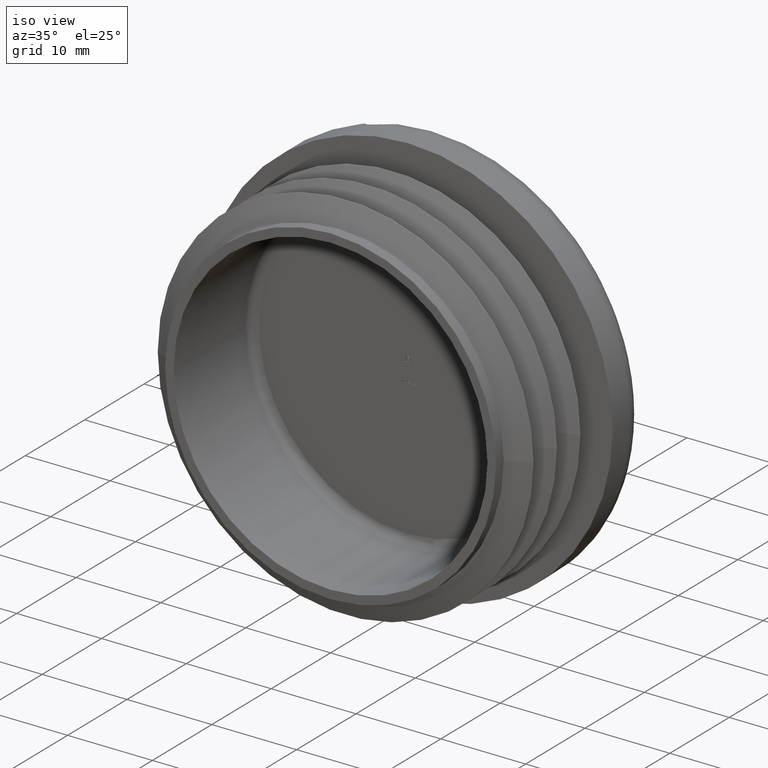
[diagram: clean part render]
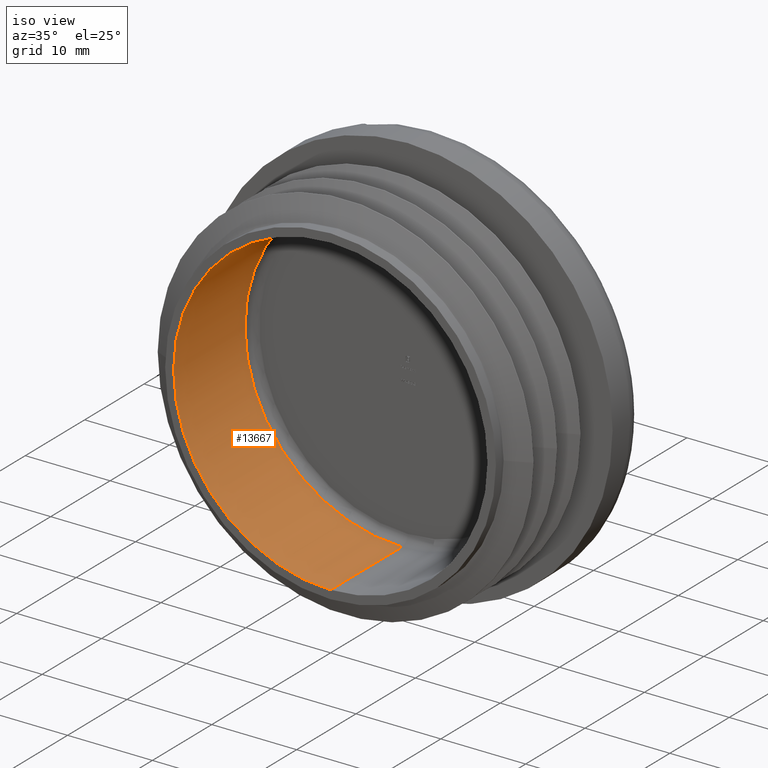
[diagram: same view with one face highlighted and labeled with its STEP entity id]
A machine part, iso view. The second image highlights one B-rep face of the part: STEP entity #13667.
In plain terms, the highlighted cylindrical surface (partial cylindrical patch) has radius 18.5 mm, axis along (-0, -1, -0).
Its self-contained STEP definition (entity closure, byte-faithful):
#457 = CARTESIAN_POINT ( 'NONE',  ( 0.000000000000000000, 12.99999999999999467, 0.000000000000000000 ) ) ;
#561 = VERTEX_POINT ( 'NONE', #8964 ) ;
#659 = DIRECTION ( 'NONE',  ( 0.000000000000000000, 0.000000000000000000, -1.000000000000000000 ) ) ;
#761 = AXIS2_PLACEMENT_3D ( 'NONE', #7139, #13609, #659 ) ;
#826 = CARTESIAN_POINT ( 'NONE',  ( 0.000000000000000000, 0.000000000000000000, -18.50000000000000000 ) ) ;
#1495 = CIRCLE ( 'NONE', #761, 18.50000000000000000 ) ;
#2174 = EDGE_CURVE ( 'NONE', #10908, #9980, #7561, .T. ) ;
#2427 = DIRECTION ( 'NONE',  ( -0.000000000000000000, -1.000000000000000000, -0.000000000000000000 ) ) ;
#2575 = FACE_OUTER_BOUND ( 'NONE', #8993, .T. ) ;
#2666 = DIRECTION ( 'NONE',  ( 0.000000000000000000, 0.000000000000000000, -1.000000000000000000 ) ) ;
#3261 = LINE ( 'NONE', #13275, #13298 ) ;
#3582 = DIRECTION ( 'NONE',  ( -0.000000000000000000, -1.000000000000000000, -0.000000000000000000 ) ) ;
#3744 = DIRECTION ( 'NONE',  ( -0.000000000000000000, -1.000000000000000000, -0.000000000000000000 ) ) ;
#3842 = VECTOR ( 'NONE', #2427, 1000.000000000000000 ) ;
#4347 = CARTESIAN_POINT ( 'NONE',  ( 2.265596578422603396E-15, 0.000000000000000000, 18.50000000000000000 ) ) ;
#4611 = ORIENTED_EDGE ( 'NONE', *, *, #13592, .F. ) ;
#5159 = CYLINDRICAL_SURFACE ( 'NONE', #5978, 18.50000000000000000 ) ;
#5916 = ORIENTED_EDGE ( 'NONE', *, *, #6703, .T. ) ;
#5978 = AXIS2_PLACEMENT_3D ( 'NONE', #457, #3744, #2666 ) ;
#6703 = EDGE_CURVE ( 'NONE', #9980, #11595, #12106, .T. ) ;
#7139 = CARTESIAN_POINT ( 'NONE',  ( 0.000000000000000000, 11.99999999999999289, 0.000000000000000000 ) ) ;
#7561 = LINE ( 'NONE', #12074, #3842 ) ;
#8116 = ORIENTED_EDGE ( 'NONE', *, *, #2174, .T. ) ;
#8535 = DIRECTION ( 'NONE',  ( 0.000000000000000000, 0.000000000000000000, -1.000000000000000000 ) ) ;
#8964 = CARTESIAN_POINT ( 'NONE',  ( 0.000000000000000000, 11.99999999999999289, -18.50000000000000000 ) ) ;
#8993 = EDGE_LOOP ( 'NONE', ( #14010, #8116, #5916, #4611 ) ) ;
#9169 = CARTESIAN_POINT ( 'NONE',  ( 0.000000000000000000, 0.000000000000000000, 0.000000000000000000 ) ) ;
#9364 = EDGE_CURVE ( 'NONE', #561, #10908, #1495, .T. ) ;
#9980 = VERTEX_POINT ( 'NONE', #4347 ) ;
#10085 = DIRECTION ( 'NONE',  ( -0.000000000000000000, -1.000000000000000000, -0.000000000000000000 ) ) ;
#10165 = CARTESIAN_POINT ( 'NONE',  ( 2.265596578422603396E-15, 11.99999999999999289, 18.50000000000000000 ) ) ;
#10908 = VERTEX_POINT ( 'NONE', #10165 ) ;
#11595 = VERTEX_POINT ( 'NONE', #826 ) ;
#11717 = AXIS2_PLACEMENT_3D ( 'NONE', #9169, #3582, #8535 ) ;
#12074 = CARTESIAN_POINT ( 'NONE',  ( 2.265596578422603396E-15, 12.99999999999999467, 18.50000000000000000 ) ) ;
#12106 = CIRCLE ( 'NONE', #11717, 18.50000000000000000 ) ;
#13275 = CARTESIAN_POINT ( 'NONE',  ( 0.000000000000000000, 12.99999999999999467, -18.50000000000000000 ) ) ;
#13298 = VECTOR ( 'NONE', #10085, 1000.000000000000000 ) ;
#13592 = EDGE_CURVE ( 'NONE', #561, #11595, #3261, .T. ) ;
#13609 = DIRECTION ( 'NONE',  ( 0.000000000000000000, 1.000000000000000000, 0.000000000000000000 ) ) ;
#13667 = ADVANCED_FACE ( 'NONE', ( #2575 ), #5159, .F. ) ;
#14010 = ORIENTED_EDGE ( 'NONE', *, *, #9364, .T. ) ;